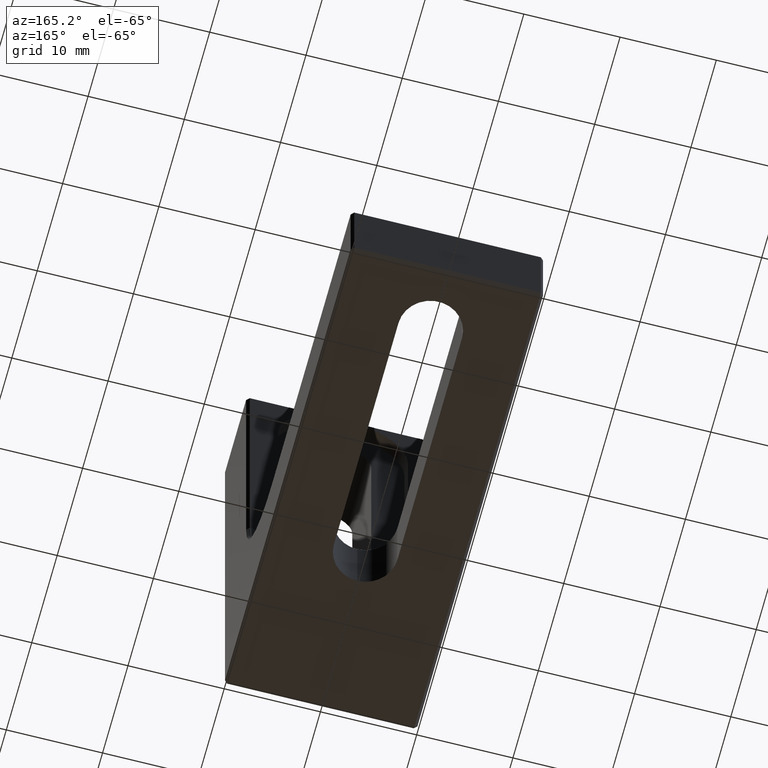
[diagram: clean part render]
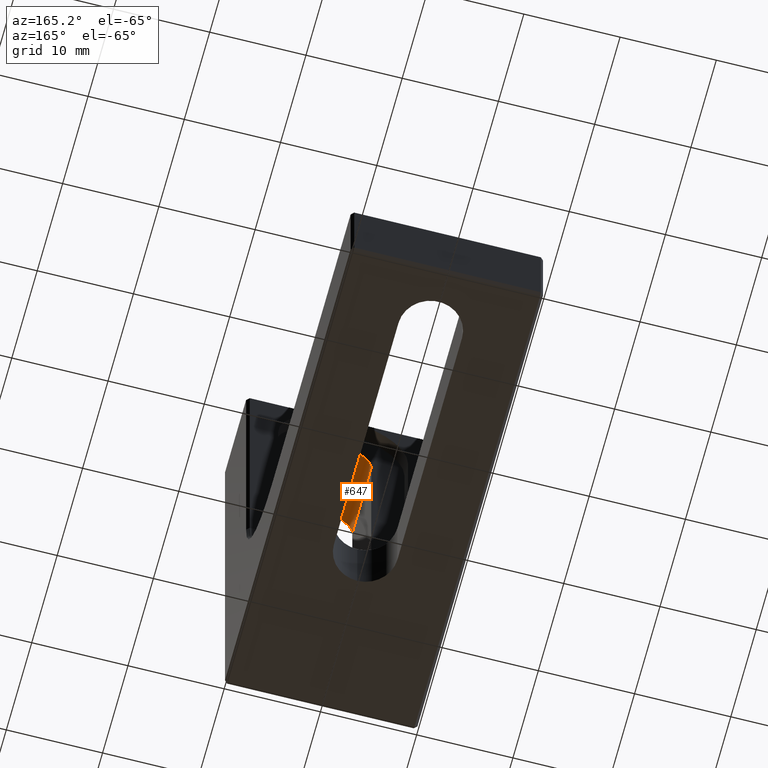
[diagram: same view with one face highlighted and labeled with its STEP entity id]
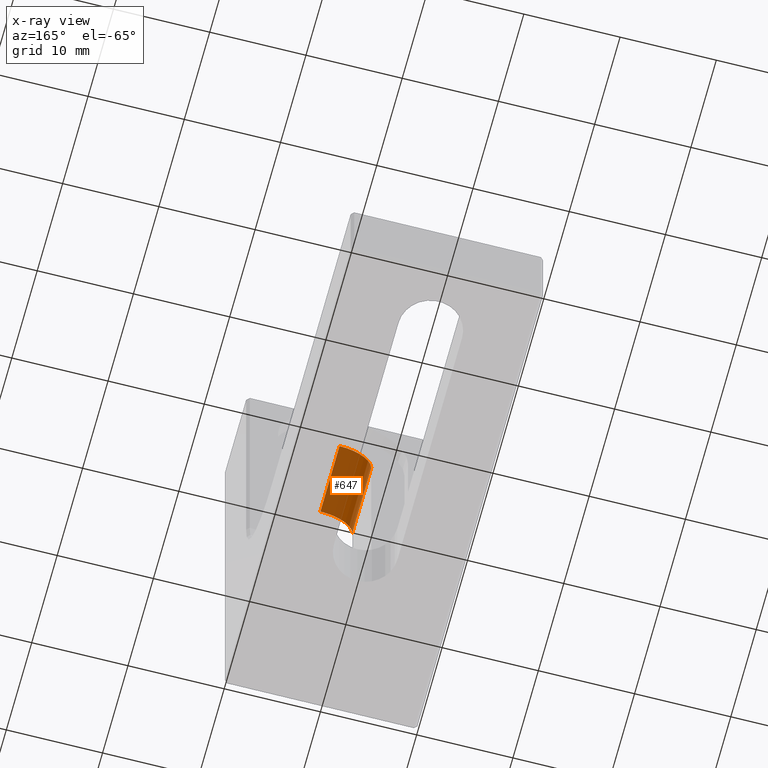
[diagram: x-ray of the same camera — body ghosted, the highlighted face saturated]
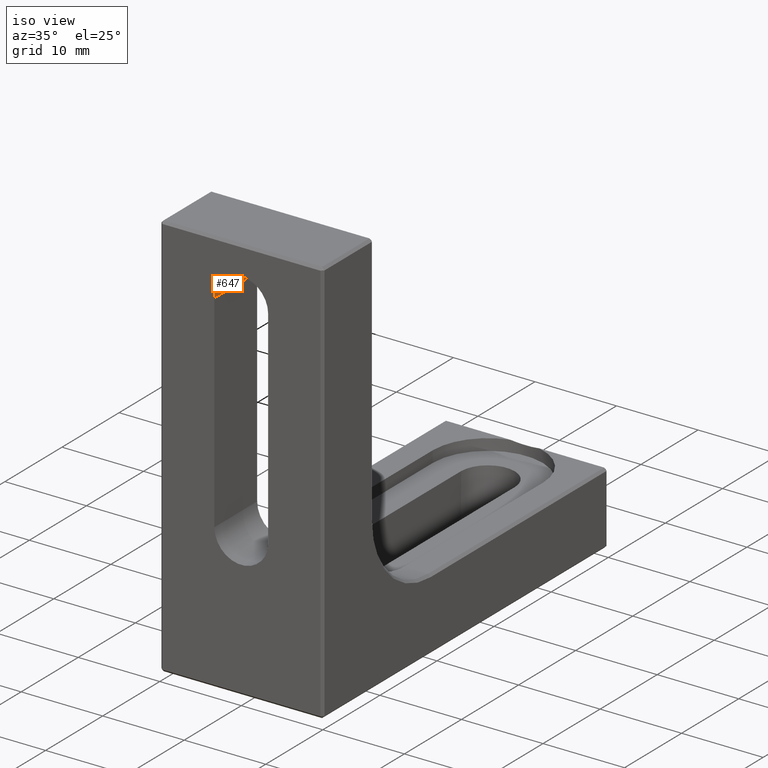
[diagram: same view with one face highlighted and labeled with its STEP entity id]
A machine part, auxiliary view. The second image highlights one B-rep face of the part: STEP entity #647.
The next image is the same camera in x-ray: the body ghosted, the highlighted face saturated — about 61% of this face is hidden behind the body in this view.
A second angle (iso view) of the same face is appended — the face is thin or edge-on in the first view.
In plain terms, the highlighted cylindrical surface (edge-blend (fillet) strip) has radius 3.3 mm, axis along (-0, 1, -0).
Its self-contained STEP definition (entity closure, byte-faithful):
#46 = DIRECTION ( 'NONE',  ( 0.000000000000000000, 0.000000000000000000, 1.000000000000000000 ) ) ;
#121 = AXIS2_PLACEMENT_3D ( 'NONE', #1048, #1459, #1040 ) ;
#181 = VERTEX_POINT ( 'NONE', #1096 ) ;
#211 = CARTESIAN_POINT ( 'NONE',  ( 2.975891721928067571E-15, -6.938893903907228378E-15, 46.48999999999998778 ) ) ;
#231 = CARTESIAN_POINT ( 'NONE',  ( -3.299999999999997158, 7.500000000000000000, 43.18999999999999062 ) ) ;
#322 = CARTESIAN_POINT ( 'NONE',  ( 2.975891721928067571E-15, 7.500000000000000000, 46.48999999999998778 ) ) ;
#336 = CARTESIAN_POINT ( 'NONE',  ( 2.975891721928067571E-15, -6.938893903907228378E-15, 43.18999999999999062 ) ) ;
#390 = AXIS2_PLACEMENT_3D ( 'NONE', #336, #835, #46 ) ;
#427 = VECTOR ( 'NONE', #865, 1000.000000000000000 ) ;
#546 = VERTEX_POINT ( 'NONE', #1477 ) ;
#601 = ORIENTED_EDGE ( 'NONE', *, *, #1010, .F. ) ;
#638 = CIRCLE ( 'NONE', #390, 3.299999999999997158 ) ;
#647 = ADVANCED_FACE ( 'NONE', ( #1236 ), #1374, .F. ) ;
#658 = EDGE_CURVE ( 'NONE', #546, #1257, #1242, .T. ) ;
#703 = ORIENTED_EDGE ( 'NONE', *, *, #1645, .F. ) ;
#782 = CARTESIAN_POINT ( 'NONE',  ( 2.975891721928067571E-15, -6.938893903907228378E-15, 43.18999999999999062 ) ) ;
#835 = DIRECTION ( 'NONE',  ( 0.000000000000000000, 1.000000000000000000, 0.000000000000000000 ) ) ;
#865 = DIRECTION ( 'NONE',  ( -0.000000000000000000, 1.000000000000000000, -0.000000000000000000 ) ) ;
#1010 = EDGE_CURVE ( 'NONE', #181, #546, #638, .T. ) ;
#1011 = VERTEX_POINT ( 'NONE', #231 ) ;
#1040 = DIRECTION ( 'NONE',  ( 0.000000000000000000, 0.000000000000000000, 1.000000000000000000 ) ) ;
#1048 = CARTESIAN_POINT ( 'NONE',  ( 2.975891721928067571E-15, 7.500000000000000000, 43.18999999999999062 ) ) ;
#1073 = DIRECTION ( 'NONE',  ( 0.000000000000000000, 0.000000000000000000, 1.000000000000000000 ) ) ;
#1096 = CARTESIAN_POINT ( 'NONE',  ( -3.299999999999995826, -5.289249525517417612E-15, 43.18999999999999062 ) ) ;
#1123 = EDGE_CURVE ( 'NONE', #181, #1011, #1724, .T. ) ;
#1236 = FACE_OUTER_BOUND ( 'NONE', #1727, .T. ) ;
#1242 = LINE ( 'NONE', #211, #1446 ) ;
#1257 = VERTEX_POINT ( 'NONE', #322 ) ;
#1356 = DIRECTION ( 'NONE',  ( -0.000000000000000000, 1.000000000000000000, -0.000000000000000000 ) ) ;
#1374 = CYLINDRICAL_SURFACE ( 'NONE', #1378, 3.299999999999997158 ) ;
#1378 = AXIS2_PLACEMENT_3D ( 'NONE', #782, #1535, #1073 ) ;
#1381 = ORIENTED_EDGE ( 'NONE', *, *, #658, .F. ) ;
#1399 = CIRCLE ( 'NONE', #121, 3.299999999999997158 ) ;
#1446 = VECTOR ( 'NONE', #1356, 1000.000000000000000 ) ;
#1459 = DIRECTION ( 'NONE',  ( -0.000000000000000000, -1.000000000000000000, -0.000000000000000000 ) ) ;
#1477 = CARTESIAN_POINT ( 'NONE',  ( 2.975891721928067571E-15, -6.938893903907228378E-15, 46.48999999999998778 ) ) ;
#1502 = ORIENTED_EDGE ( 'NONE', *, *, #1123, .T. ) ;
#1535 = DIRECTION ( 'NONE',  ( -0.000000000000000000, 1.000000000000000000, -0.000000000000000000 ) ) ;
#1645 = EDGE_CURVE ( 'NONE', #1257, #1011, #1399, .T. ) ;
#1724 = LINE ( 'NONE', #1735, #427 ) ;
#1727 = EDGE_LOOP ( 'NONE', ( #1381, #601, #1502, #703 ) ) ;
#1735 = CARTESIAN_POINT ( 'NONE',  ( -3.299999999999997158, -6.938893903907228378E-15, 43.18999999999999062 ) ) ;